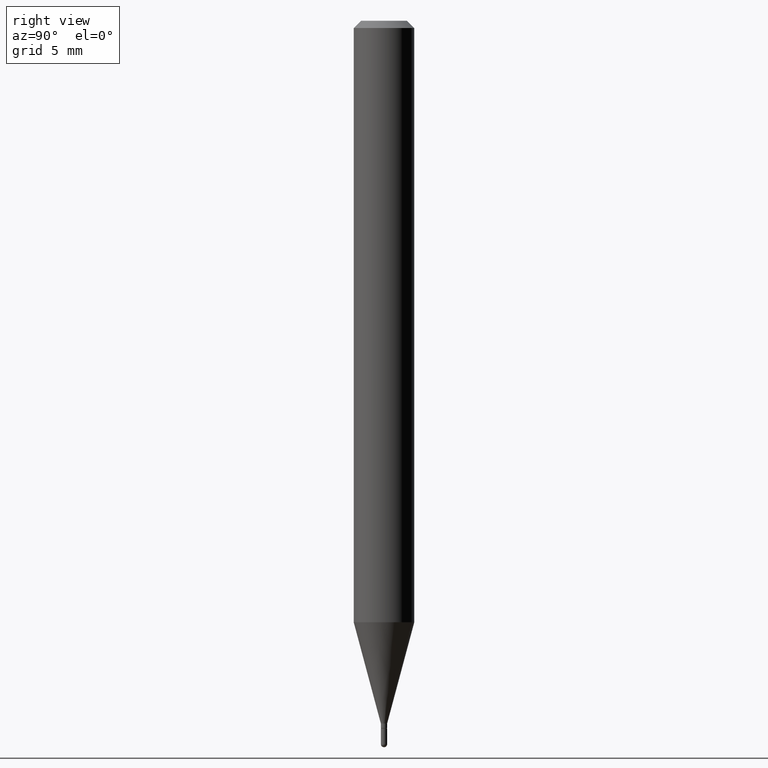
[diagram: clean part render]
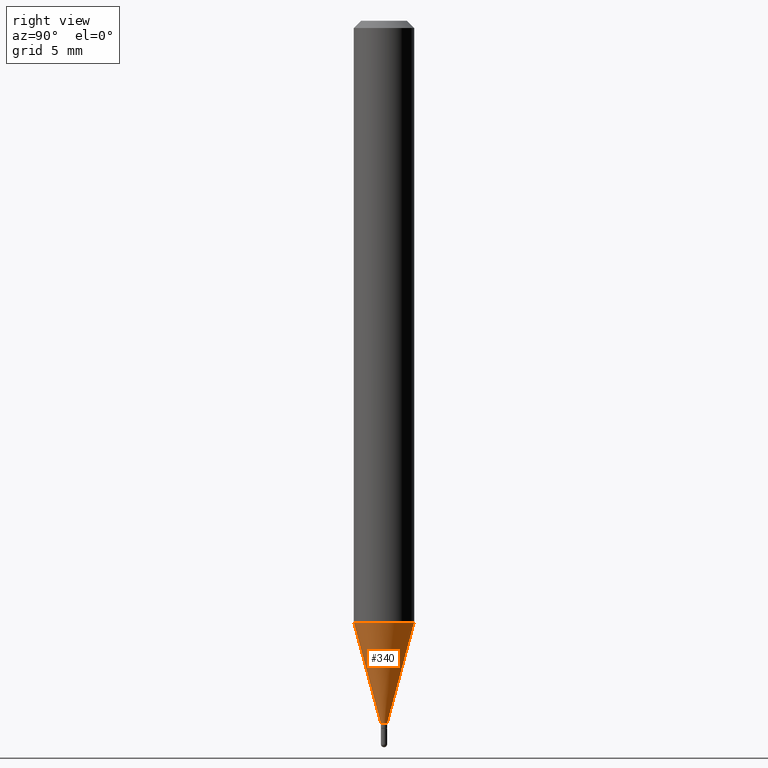
[diagram: same view with one face highlighted and labeled with its STEP entity id]
A machine part, right view. The second image highlights one B-rep face of the part: STEP entity #340.
In plain terms, the highlighted conical surface has half-angle 15 deg.
Its self-contained STEP definition (entity closure, byte-faithful):
#12 = CONICAL_SURFACE ( 'NONE', #335, 0.006499999999999922506, 0.2617993877991501295 ) ;
#16 = LINE ( 'NONE', #252, #185 ) ;
#41 = DIRECTION ( 'NONE',  ( -6.982962677686265133E-15, -1.000000000000000000, 0.000000000000000000 ) ) ;
#48 = CARTESIAN_POINT ( 'NONE',  ( 4.440892098500927901E-16, 0.06249999999999564237, -1.242005154776143705 ) ) ;
#67 = VERTEX_POINT ( 'NONE', #167 ) ;
#69 = CARTESIAN_POINT ( 'NONE',  ( -4.538925740492469722E-17, -0.006500000000004987899, -1.451000000000000068 ) ) ;
#79 = EDGE_CURVE ( 'NONE', #67, #498, #16, .T. ) ;
#85 = DIRECTION ( 'NONE',  ( -2.445480254154680147E-29, 3.491464944699181340E-15, 1.000000000000000000 ) ) ;
#102 = DIRECTION ( 'NONE',  ( 1.839019923739599526E-15, 0.2588190451025248473, 0.9659258262890673130 ) ) ;
#106 = DIRECTION ( 'NONE',  ( -1.807323732225328562E-15, -0.2588190451025179639, 0.9659258262890689783 ) ) ;
#108 = DIRECTION ( 'NONE',  ( -2.445480254154680147E-29, 3.491464944699181340E-15, 1.000000000000000000 ) ) ;
#109 = EDGE_CURVE ( 'NONE', #259, #333, #222, .T. ) ;
#115 = ORIENTED_EDGE ( 'NONE', *, *, #472, .T. ) ;
#127 = AXIS2_PLACEMENT_3D ( 'NONE', #141, #307, #231 ) ;
#141 = CARTESIAN_POINT ( 'NONE',  ( 3.548391848778441263E-29, -5.066115634758512685E-15, -1.451000000000000068 ) ) ;
#159 = FACE_OUTER_BOUND ( 'NONE', #398, .T. ) ;
#167 = CARTESIAN_POINT ( 'NONE',  ( 2.451372438372673224E-16, 0.006499999999994857114, -1.451000000000000068 ) ) ;
#185 = VECTOR ( 'NONE', #102, 39.37007874015747433 ) ;
#208 = AXIS2_PLACEMENT_3D ( 'NONE', #296, #108, #459 ) ;
#222 = LINE ( 'NONE', #226, #468 ) ;
#226 = CARTESIAN_POINT ( 'NONE',  ( -4.538925740492469722E-17, -0.006500000000004987899, -1.451000000000000068 ) ) ;
#227 = ORIENTED_EDGE ( 'NONE', *, *, #109, .F. ) ;
#231 = DIRECTION ( 'NONE',  ( -6.982962677686265133E-15, -1.000000000000000000, 0.000000000000000000 ) ) ;
#252 = CARTESIAN_POINT ( 'NONE',  ( 4.618527782444143555E-17, 0.006499999999994857114, -1.451000000000000068 ) ) ;
#259 = VERTEX_POINT ( 'NONE', #69 ) ;
#276 = CIRCLE ( 'NONE', #127, 0.006499999999999922506 ) ;
#296 = CARTESIAN_POINT ( 'NONE',  ( 3.037299081563385917E-29, -4.336417459036585506E-15, -1.242005154776143261 ) ) ;
#307 = DIRECTION ( 'NONE',  ( -2.445480254154680147E-29, 3.491464944699181340E-15, 1.000000000000000000 ) ) ;
#316 = ORIENTED_EDGE ( 'NONE', *, *, #79, .T. ) ;
#320 = CARTESIAN_POINT ( 'NONE',  ( 3.548391848778441263E-29, -5.066115634758512685E-15, -1.451000000000000068 ) ) ;
#333 = VERTEX_POINT ( 'NONE', #502 ) ;
#335 = AXIS2_PLACEMENT_3D ( 'NONE', #320, #85, #41 ) ;
#340 = ADVANCED_FACE ( 'NONE', ( #159 ), #12, .T. ) ;
#355 = ORIENTED_EDGE ( 'NONE', *, *, #478, .F. ) ;
#398 = EDGE_LOOP ( 'NONE', ( #115, #316, #355, #227 ) ) ;
#459 = DIRECTION ( 'NONE',  ( -6.982962677686265922E-15, -1.000000000000000000, 4.370956789862821150E-15 ) ) ;
#468 = VECTOR ( 'NONE', #106, 39.37007874015749564 ) ;
#470 = CIRCLE ( 'NONE', #208, 0.06250000000000000000 ) ;
#472 = EDGE_CURVE ( 'NONE', #259, #67, #276, .T. ) ;
#478 = EDGE_CURVE ( 'NONE', #333, #498, #470, .T. ) ;
#498 = VERTEX_POINT ( 'NONE', #48 ) ;
#502 = CARTESIAN_POINT ( 'NONE',  ( -4.364351673553612983E-16, -0.06250000000000432987, -1.242005154776143039 ) ) ;